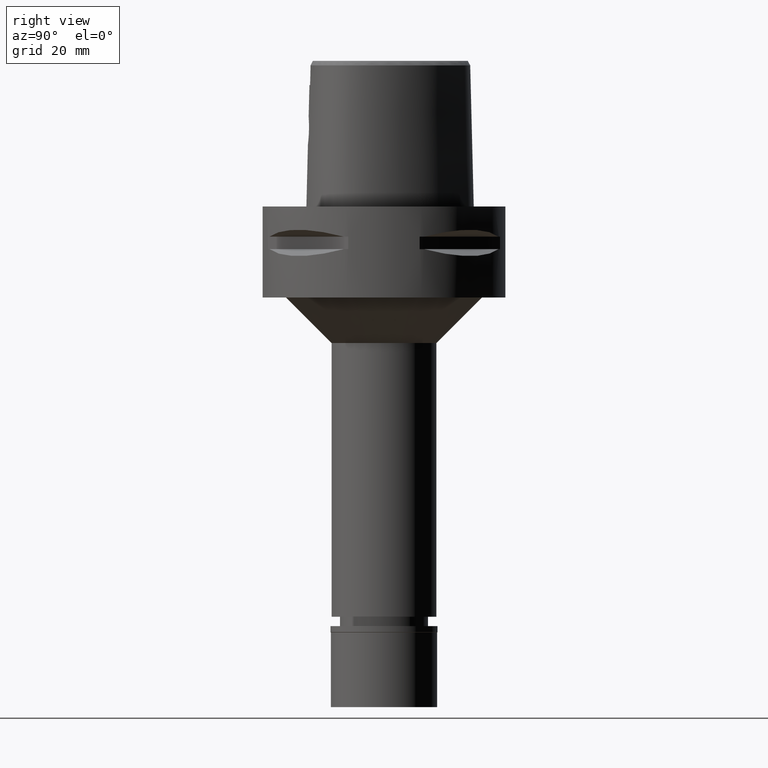
[diagram: clean part render]
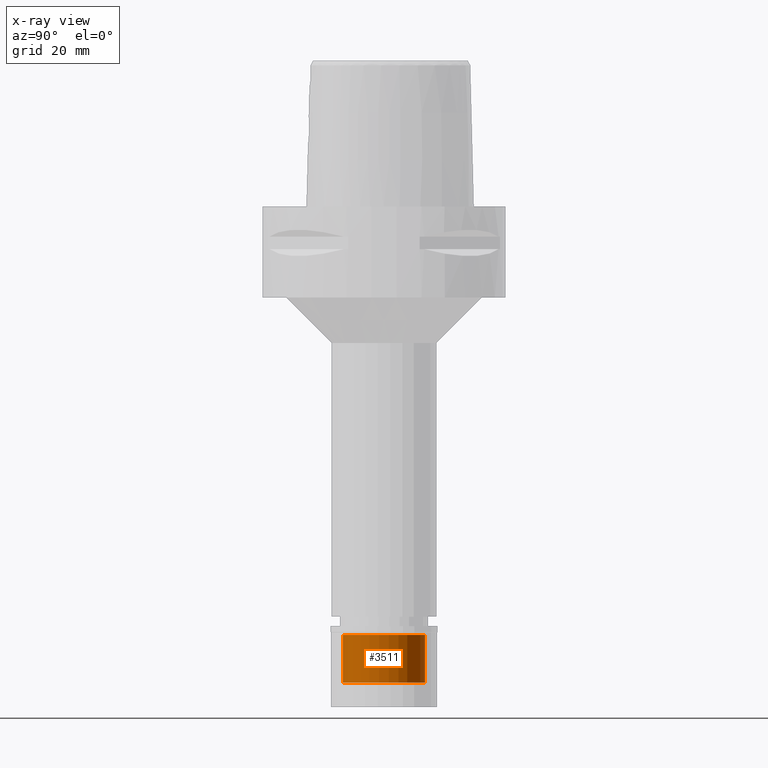
[diagram: x-ray — body ghosted, one internal face saturated and labeled with its STEP entity id]
A machine part, right view, then the same camera in x-ray: the body is ghosted and one INTERNAL B-rep face — a face not visible from any outside direction — is saturated and labeled: STEP entity #3511.
In plain terms, the highlighted cylindrical surface (partial cylindrical patch) has radius 13.5 mm, axis along (0, 0, -1).
Its self-contained STEP definition (entity closure, byte-faithful):
#359 = CARTESIAN_POINT ( 'NONE',  ( 0.0000000000000000000, -13.50000000000000000, -18.70000000000000284 ) ) ;
#468 = LINE ( 'NONE', #1676, #2053 ) ;
#486 = VERTEX_POINT ( 'NONE', #4329 ) ;
#712 = DIRECTION ( 'NONE',  ( 0.0000000000000000000, 0.0000000000000000000, 1.000000000000000000 ) ) ;
#781 = EDGE_LOOP ( 'NONE', ( #5005, #3332, #4923, #4433 ) ) ;
#863 = CYLINDRICAL_SURFACE ( 'NONE', #4374, 13.50000000000000000 ) ;
#1057 = CARTESIAN_POINT ( 'NONE',  ( 0.0000000000000000000, -13.50000000000000000, -2.899999999999999911 ) ) ;
#1301 = EDGE_CURVE ( 'NONE', #3978, #3210, #2530, .T. ) ;
#1361 = CARTESIAN_POINT ( 'NONE',  ( 0.0000000000000000000, 0.0000000000000000000, -2.899999999999999911 ) ) ;
#1546 = EDGE_CURVE ( 'NONE', #3961, #486, #4946, .T. ) ;
#1676 = CARTESIAN_POINT ( 'NONE',  ( 0.0000000000000000000, -13.50000000000000000, -18.70000000000000284 ) ) ;
#1994 = CARTESIAN_POINT ( 'NONE',  ( 0.0000000000000000000, 0.0000000000000000000, -18.70000000000000284 ) ) ;
#2053 = VECTOR ( 'NONE', #3268, 1000.000000000000000 ) ;
#2073 = CARTESIAN_POINT ( 'NONE',  ( 0.0000000000000000000, 0.0000000000000000000, 0.0000000000000000000 ) ) ;
#2428 = DIRECTION ( 'NONE',  ( 0.0000000000000000000, 0.0000000000000000000, -1.000000000000000000 ) ) ;
#2530 = CIRCLE ( 'NONE', #4357, 13.50000000000000000 ) ;
#2580 = EDGE_CURVE ( 'NONE', #3978, #486, #3424, .T. ) ;
#2692 = AXIS2_PLACEMENT_3D ( 'NONE', #1361, #4905, #4543 ) ;
#2693 = CARTESIAN_POINT ( 'NONE',  ( 0.0000000000000000000, 13.50000000000000000, -18.70000000000000284 ) ) ;
#2852 = DIRECTION ( 'NONE',  ( 0.0000000000000000000, 0.0000000000000000000, -1.000000000000000000 ) ) ;
#3208 = VECTOR ( 'NONE', #712, 1000.000000000000000 ) ;
#3210 = VERTEX_POINT ( 'NONE', #359 ) ;
#3243 = FACE_OUTER_BOUND ( 'NONE', #781, .T. ) ;
#3268 = DIRECTION ( 'NONE',  ( 0.0000000000000000000, 0.0000000000000000000, 1.000000000000000000 ) ) ;
#3332 = ORIENTED_EDGE ( 'NONE', *, *, #3516, .T. ) ;
#3424 = LINE ( 'NONE', #2693, #3208 ) ;
#3511 = ADVANCED_FACE ( 'NONE', ( #3243 ), #863, .F. ) ;
#3516 = EDGE_CURVE ( 'NONE', #3210, #3961, #468, .T. ) ;
#3583 = DIRECTION ( 'NONE',  ( 0.0000000000000000000, 1.000000000000000000, 0.0000000000000000000 ) ) ;
#3961 = VERTEX_POINT ( 'NONE', #1057 ) ;
#3978 = VERTEX_POINT ( 'NONE', #5002 ) ;
#4057 = DIRECTION ( 'NONE',  ( 0.0000000000000000000, -1.000000000000000000, 0.0000000000000000000 ) ) ;
#4329 = CARTESIAN_POINT ( 'NONE',  ( 0.0000000000000000000, 13.50000000000000000, -2.899999999999999911 ) ) ;
#4357 = AXIS2_PLACEMENT_3D ( 'NONE', #1994, #2428, #3583 ) ;
#4374 = AXIS2_PLACEMENT_3D ( 'NONE', #2073, #2852, #4057 ) ;
#4433 = ORIENTED_EDGE ( 'NONE', *, *, #2580, .F. ) ;
#4543 = DIRECTION ( 'NONE',  ( 0.0000000000000000000, -1.000000000000000000, 0.0000000000000000000 ) ) ;
#4905 = DIRECTION ( 'NONE',  ( 0.0000000000000000000, 0.0000000000000000000, 1.000000000000000000 ) ) ;
#4923 = ORIENTED_EDGE ( 'NONE', *, *, #1546, .T. ) ;
#4946 = CIRCLE ( 'NONE', #2692, 13.50000000000000000 ) ;
#5002 = CARTESIAN_POINT ( 'NONE',  ( 0.0000000000000000000, 13.50000000000000000, -18.70000000000000284 ) ) ;
#5005 = ORIENTED_EDGE ( 'NONE', *, *, #1301, .T. ) ;